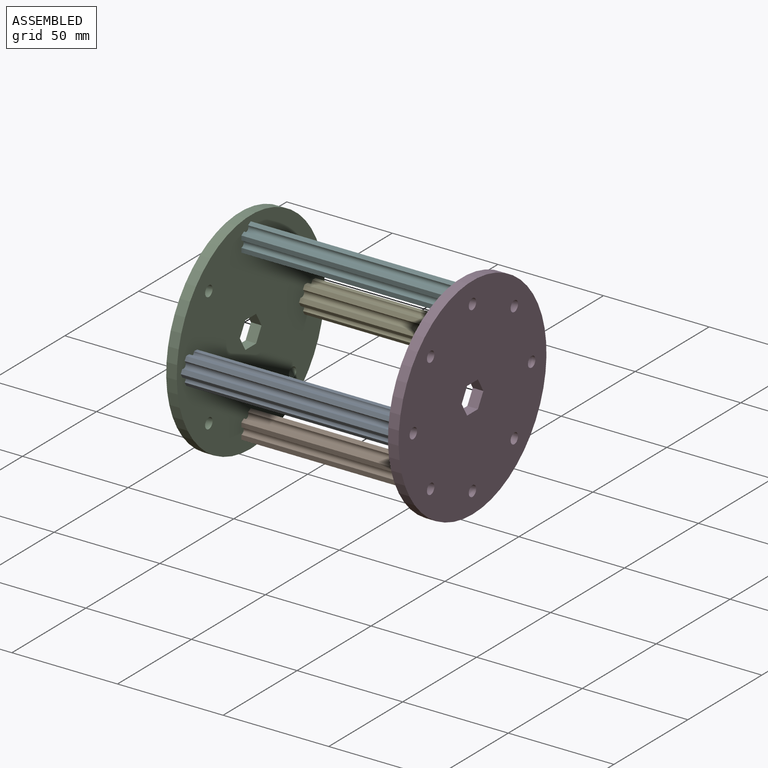
[diagram: assembled view]
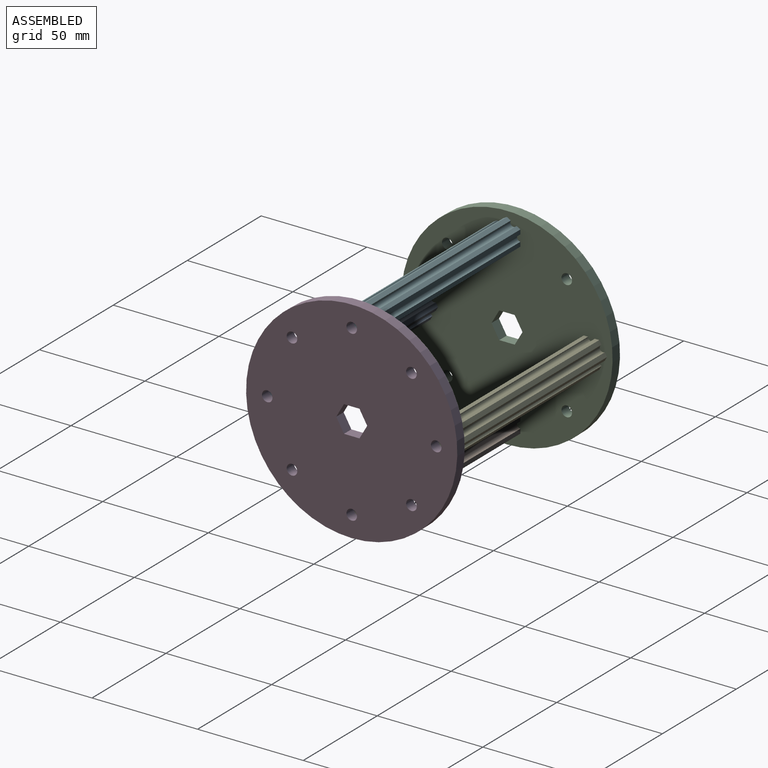
[diagram: assembled view, second angle]
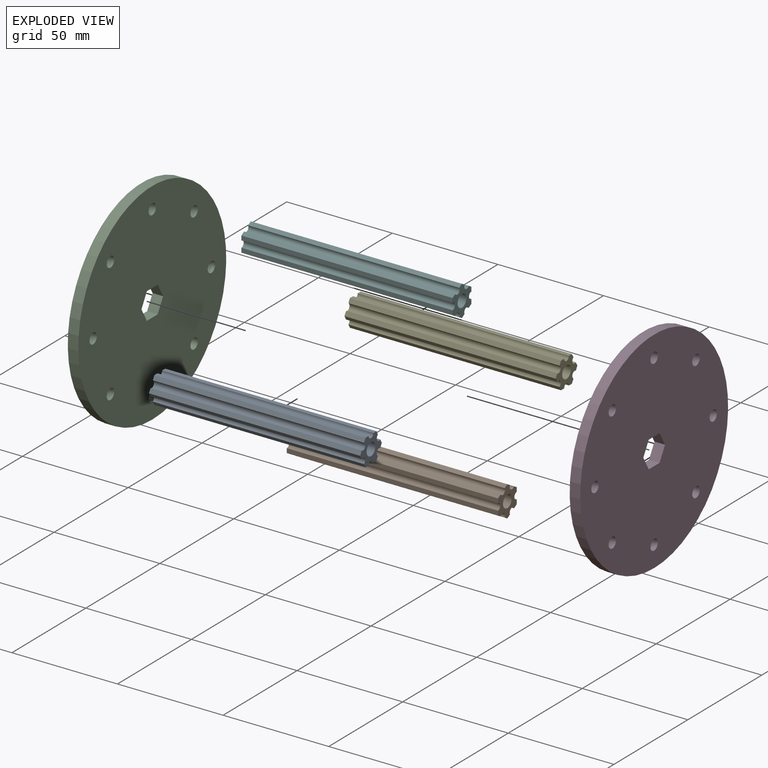
[diagram: exploded view]
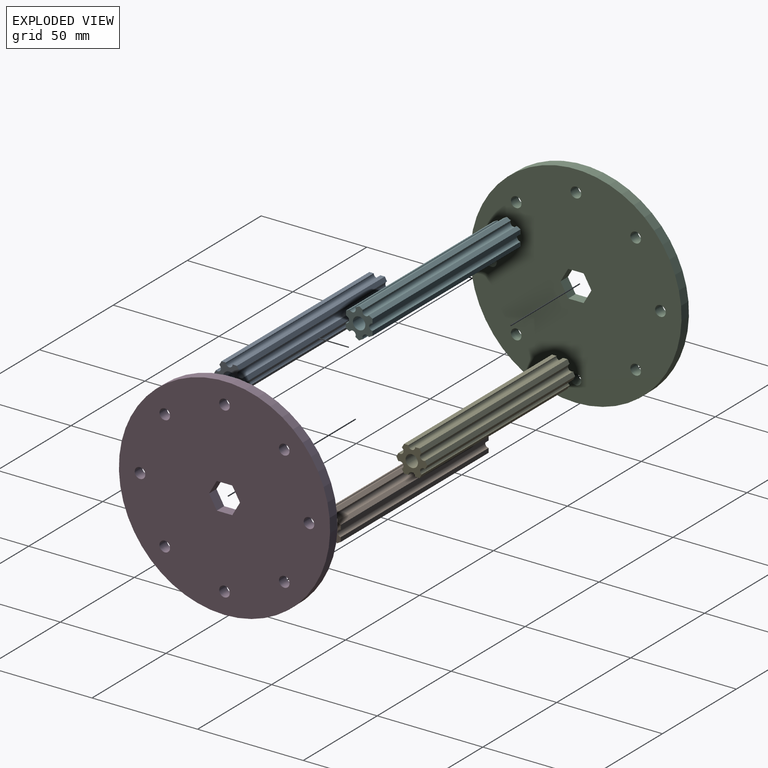
[diagram: exploded view, second angle]
ASSEMBLY  parts=6 mates=3
PART A: 21 faces, bbox 14.7x12.7x100 mm
  f0: cylinder r=2.93mm len=100mm, axis (0,0,-1), area 1843.3mm2, adj f19,f20
  f1: cylinder r=1.59mm len=100mm, axis (0,0,-1), area 498.7mm2, adj f3,f18,f19,f20
  f2: cylinder r=1.59mm len=100mm, axis (0,0,-1), area 498.7mm2, adj f4,f5,f19,f20
  f3: plane 100x1.8mm, normal (0.87,-0.5,0), area 207.9mm2, adj f1,f4,f19,f20
  f4: plane 100x1.8mm, normal (0.87,0.5,0), area 207.9mm2, adj f2,f3,f19,f20
  f5: plane 100x1.8mm, normal (0.87,0.5,0), area 207.9mm2, adj f2,f6,f19,f20
  f6: plane 100x2.08mm, normal (0,1,0), area 207.9mm2, adj f5,f7,f19,f20
  f7: cylinder r=1.59mm len=100mm, axis (0,0,-1), area 498.7mm2, adj f6,f8,f19,f20
  f8: plane 100x2.08mm, normal (0,1,0), area 207.9mm2, adj f7,f9,f19,f20
  f9: plane 100x1.8mm, normal (-0.87,0.5,0), area 207.9mm2, adj f8,f10,f19,f20
  f10: cylinder r=1.59mm len=100mm, axis (0,0,-1), area 498.7mm2, adj f9,f11,f19,f20
  f11: plane 100x1.8mm, normal (-0.87,0.5,0), area 207.9mm2, adj f10,f12,f19,f20
  f12: plane 100x1.8mm, normal (-0.87,-0.5,0), area 207.9mm2, adj f11,f13,f19,f20
  f13: cylinder r=1.59mm len=100mm, axis (0,0,-1), area 498.7mm2, adj f12,f14,f19,f20
  f14: plane 100x1.8mm, normal (-0.87,-0.5,0), area 207.9mm2, adj f13,f15,f19,f20
  f15: plane 100x2.08mm, normal (0,-1,0), area 207.9mm2, adj f14,f16,f19,f20
  f16: cylinder r=1.59mm len=100mm, axis (0,0,-1), area 498.7mm2, adj f15,f17,f19,f20
  f17: plane 100x2.08mm, normal (0,-1,0), area 207.9mm2, adj f16,f18,f19,f20
  f18: plane 100x1.8mm, normal (0.87,-0.5,0), area 207.9mm2, adj f1,f17,f19,f20
  f19: plane 14.66x12.7mm, normal (0,0,-1), area 88.9mm2, adj f0,f1,f2,f3,f4,f5,f6,f7
  f20: plane 14.66x12.7mm, normal (0,0,1), area 88.9mm2, adj f0,f1,f2,f3,f4,f5,f6,f7
PART B: same geometry as A
PART C: 17 faces, bbox 5x100x100 mm
  f0: plane 6.35x5mm, normal (0,0.87,-0.5), area 36.7mm2, adj f1,f14,f15,f16
  f1: plane 7.33x5mm, normal (0,0,-1), area 36.7mm2, adj f0,f2,f15,f16
  f2: plane 6.35x5mm, normal (0,-0.87,-0.5), area 36.7mm2, adj f1,f3,f15,f16
  f3: plane 6.35x5mm, normal (0,-0.87,0.5), area 36.7mm2, adj f2,f4,f15,f16
  f4: plane 7.33x5mm, normal (0,0,1), area 36.7mm2, adj f3,f14,f15,f16
  f5: cylinder r=50mm len=100mm, axis (-1,0,0), area 1570.8mm2, adj f15,f16
  f6: cylinder r=2.5mm len=5mm, axis (-1,0,0), area 78.5mm2, adj f15,f16
  f7: cylinder r=2.5mm len=5mm, axis (-1,0,0), area 78.5mm2, adj f15,f16
  f8: cylinder r=2.5mm len=5mm, axis (-1,0,0), area 78.5mm2, adj f15,f16
  f9: cylinder r=2.5mm len=5mm, axis (-1,0,0), area 78.5mm2, adj f15,f16
  f10: cylinder r=2.5mm len=5mm, axis (-1,0,0), area 78.5mm2, adj f15,f16
  f11: cylinder r=2.5mm len=5mm, axis (-1,0,0), area 78.5mm2, adj f15,f16
  f12: cylinder r=2.5mm len=5mm, axis (-1,0,0), area 78.5mm2, adj f15,f16
  f13: cylinder r=2.5mm len=5mm, axis (-1,0,0), area 78.5mm2, adj f15,f16
  f14: plane 6.35x5mm, normal (0,0.87,0.5), area 36.7mm2, adj f0,f4,f15,f16
  f15: plane 100x100mm, normal (1,0,0), area 7557.2mm2, adj f0,f1,f2,f3,f4,f5,f6,f7
  f16: plane 100x100mm, normal (-1,0,0), area 7557.2mm2, adj f0,f1,f2,f3,f4,f5,f6,f7
PART D: same geometry as C
PART E: same geometry as A
PART F: same geometry as A
PLACE A rot(axis=(-0.58,-0.58,0.58),120deg) t=(-28.16,-88.29,-87.84)mm
PLACE B rot(axis=(0,-1,0),90deg) t=(-28.16,-48.29,-127.84)mm
PLACE C t=(-133.16,-48.29,-87.84)mm
PLACE D t=(-28.16,-48.29,-87.84)mm
PLACE E rot(axis=(0.58,-0.58,-0.58),120deg) t=(-28.16,-8.29,-87.84)mm
PLACE F rot(axis=(0.71,0,-0.71),180deg) t=(-28.16,-48.29,-47.84)mm
MATE cylindrical C.f8 <-> A.f0  axis (1,0,0) through (-128.16,-88.29,-87.84)mm
MATE planar B.f19 <-> D.f5  axis (-1,0,0) through (-28.16,-41.94,-129.42)mm
MATE slider B.f0 <-> D.f10  axis (1,0,0) through (-28.16,-48.29,-127.84)mm
